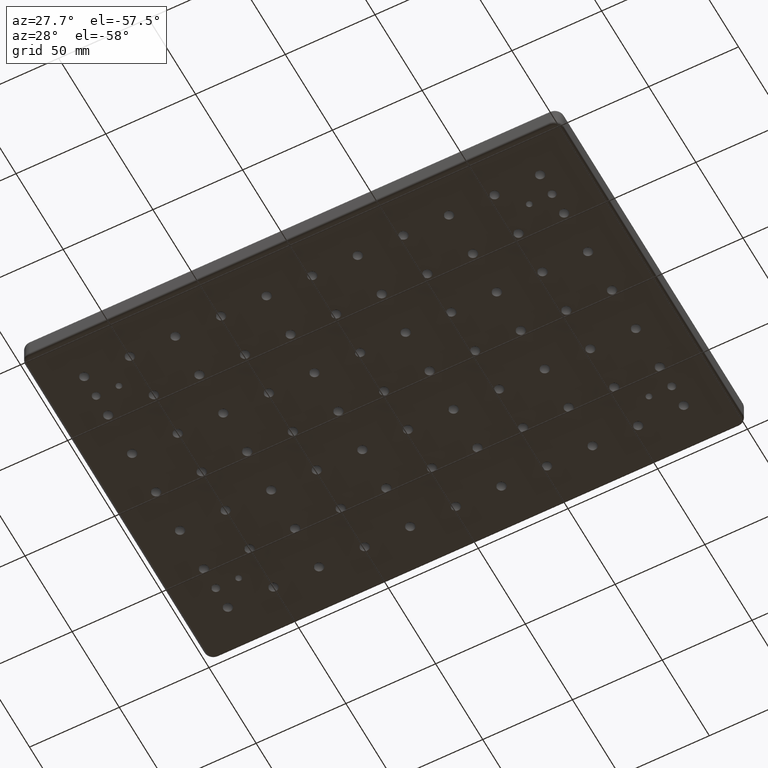
[diagram: clean part render]
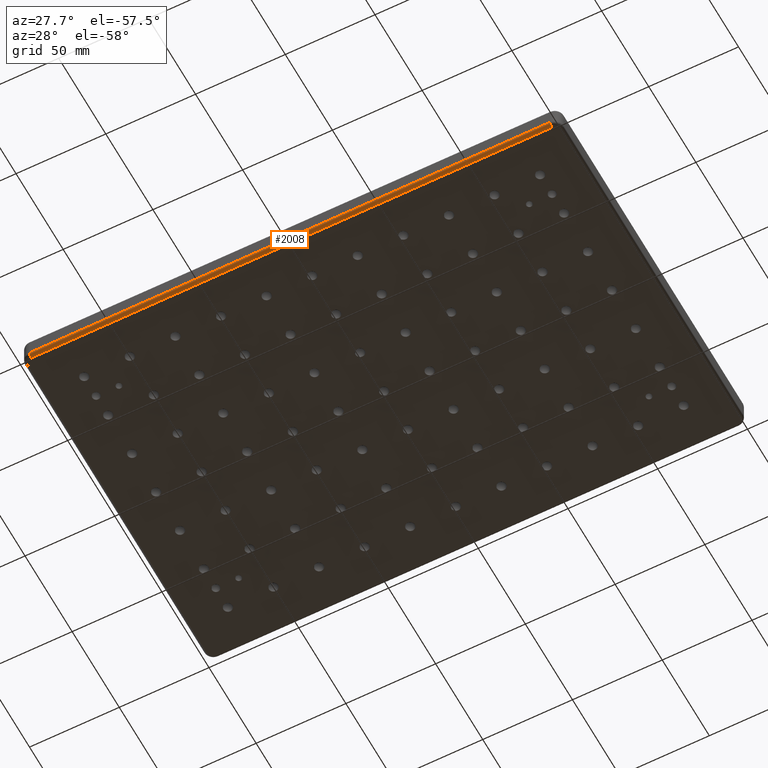
[diagram: same view with one face highlighted and labeled with its STEP entity id]
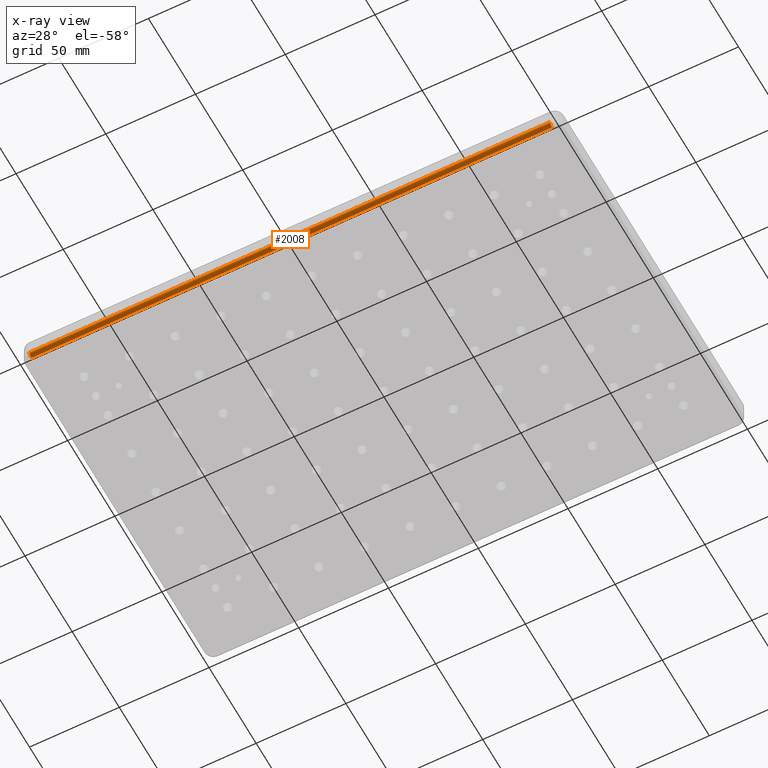
[diagram: x-ray of the same camera — body ghosted, the highlighted face saturated]
A machine part, auxiliary view. The second image highlights one B-rep face of the part: STEP entity #2008.
The next image is the same camera in x-ray: the body ghosted, the highlighted face saturated — about 0% of this face is hidden behind the body in this view.
In plain terms, the highlighted cylindrical surface (edge-blend (fillet) strip) has radius 2 mm, axis along (1, -0, 0).
Its self-contained STEP definition (entity closure, byte-faithful):
#109 = DIRECTION ( 'NONE',  ( 1.000000000000000000, -1.435633221498046800E-016, 0.0000000000000000000 ) ) ;
#323 = DIRECTION ( 'NONE',  ( -1.000000000000000000, 1.435633221498046800E-016, -0.0000000000000000000 ) ) ;
#660 = CARTESIAN_POINT ( 'NONE',  ( 145.0000000000001100, -98.00000000000004300, -13.00000000000000000 ) ) ;
#666 = CIRCLE ( 'NONE', #3934, 2.000000000000000000 ) ;
#681 = DIRECTION ( 'NONE',  ( 1.000000000000000000, -1.435633221498046800E-016, 0.0000000000000000000 ) ) ;
#829 = EDGE_CURVE ( 'NONE', #2985, #2751, #5893, .T. ) ;
#835 = VERTEX_POINT ( 'NONE', #4875 ) ;
#1369 = AXIS2_PLACEMENT_3D ( 'NONE', #4114, #109, #2451 ) ;
#1383 = LINE ( 'NONE', #5851, #1559 ) ;
#1559 = VECTOR ( 'NONE', #681, 1000.000000000000000 ) ;
#1873 = CARTESIAN_POINT ( 'NONE',  ( 145.0000000000000900, -100.0000000000000400, -11.00000000000000000 ) ) ;
#1877 = CARTESIAN_POINT ( 'NONE',  ( 145.0000000000000900, -98.00000000000004300, -11.00000000000000000 ) ) ;
#2008 = ADVANCED_FACE ( 'NONE', ( #5338 ), #5249, .T. ) ;
#2088 = CARTESIAN_POINT ( 'NONE',  ( -145.0000000000001100, -98.00000000000000000, -13.00000000000000000 ) ) ;
#2451 = DIRECTION ( 'NONE',  ( 0.0000000000000000000, 1.000000000000000000, 0.0000000000000000000 ) ) ;
#2455 = DIRECTION ( 'NONE',  ( 1.000000000000000000, 0.0000000000000000000, 1.387778780781445500E-014 ) ) ;
#2751 = VERTEX_POINT ( 'NONE', #6139 ) ;
#2752 = CARTESIAN_POINT ( 'NONE',  ( -145.0000000000000900, -98.00000000000000000, -11.00000000000000000 ) ) ;
#2940 = DIRECTION ( 'NONE',  ( 1.000000000000000000, 0.0000000000000000000, 0.0000000000000000000 ) ) ;
#2985 = VERTEX_POINT ( 'NONE', #660 ) ;
#3015 = DIRECTION ( 'NONE',  ( 1.387778780781445700E-014, 0.0000000000000000000, -1.000000000000000000 ) ) ;
#3083 = VERTEX_POINT ( 'NONE', #1873 ) ;
#3145 = DIRECTION ( 'NONE',  ( 0.0000000000000000000, 0.0000000000000000000, -1.000000000000000000 ) ) ;
#3511 = EDGE_LOOP ( 'NONE', ( #7281, #6131, #6540, #5931 ) ) ;
#3934 = AXIS2_PLACEMENT_3D ( 'NONE', #2752, #2940, #3145 ) ;
#4114 = CARTESIAN_POINT ( 'NONE',  ( -145.0000000000000900, -98.00000000000000000, -11.00000000000000000 ) ) ;
#4875 = CARTESIAN_POINT ( 'NONE',  ( -145.0000000000000900, -100.0000000000000000, -11.00000000000000000 ) ) ;
#5249 = CYLINDRICAL_SURFACE ( 'NONE', #1369, 2.000000000000001800 ) ;
#5288 = CIRCLE ( 'NONE', #6938, 2.000000000000000000 ) ;
#5338 = FACE_OUTER_BOUND ( 'NONE', #3511, .T. ) ;
#5546 = EDGE_CURVE ( 'NONE', #835, #3083, #1383, .T. ) ;
#5641 = VECTOR ( 'NONE', #323, 1000.000000000000000 ) ;
#5851 = CARTESIAN_POINT ( 'NONE',  ( -145.0000000000000900, -100.0000000000000000, -11.00000000000000000 ) ) ;
#5893 = LINE ( 'NONE', #2088, #5641 ) ;
#5931 = ORIENTED_EDGE ( 'NONE', *, *, #5546, .F. ) ;
#6131 = ORIENTED_EDGE ( 'NONE', *, *, #829, .F. ) ;
#6139 = CARTESIAN_POINT ( 'NONE',  ( -145.0000000000000900, -98.00000000000000000, -13.00000000000000000 ) ) ;
#6540 = ORIENTED_EDGE ( 'NONE', *, *, #6670, .F. ) ;
#6670 = EDGE_CURVE ( 'NONE', #3083, #2985, #5288, .T. ) ;
#6938 = AXIS2_PLACEMENT_3D ( 'NONE', #1877, #2455, #3015 ) ;
#7075 = EDGE_CURVE ( 'NONE', #835, #2751, #666, .T. ) ;
#7281 = ORIENTED_EDGE ( 'NONE', *, *, #7075, .T. ) ;